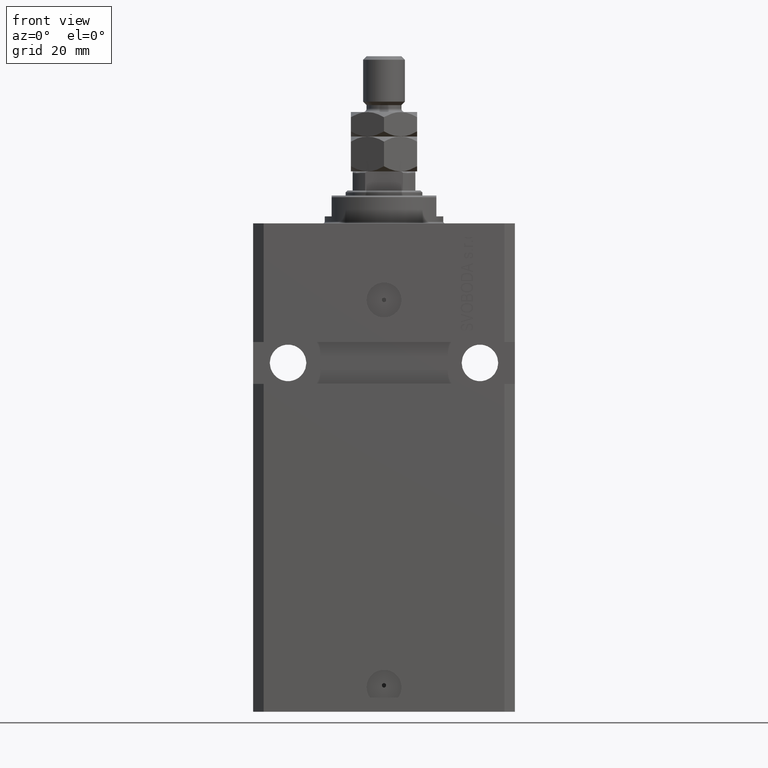
[diagram: clean part render]
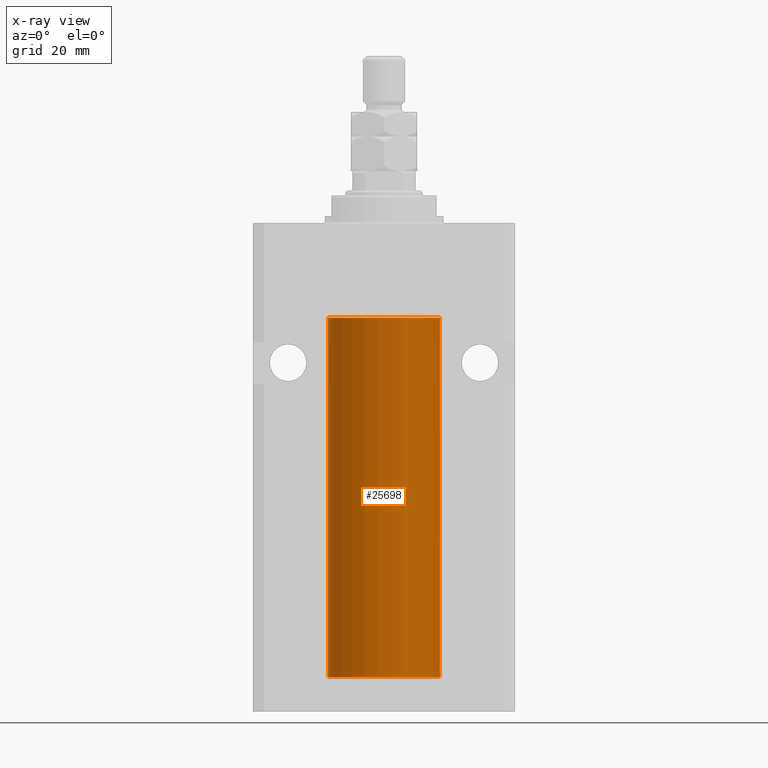
[diagram: x-ray — body ghosted, one internal face saturated and labeled with its STEP entity id]
A machine part, front view, then the same camera in x-ray: the body is ghosted and one INTERNAL B-rep face — a face not visible from any outside direction — is saturated and labeled: STEP entity #25698.
In plain terms, the highlighted cylindrical surface (partial cylindrical patch) has radius 16 mm, axis along (0, 0, 1).
Its self-contained STEP definition (entity closure, byte-faithful):
#739 = EDGE_LOOP ( 'NONE', ( #27831, #24135, #23318, #39933, #44777, #41147, #22969 ) ) ;
#1158 = AXIS2_PLACEMENT_3D ( 'NONE', #1783, #30860, #28059 ) ;
#1783 = CARTESIAN_POINT ( 'NONE',  ( 0.000000000000000000, 0.000000000000000000, -27.10000000000000142 ) ) ;
#2250 = VECTOR ( 'NONE', #29931, 1000.000000000000000 ) ;
#2405 = B_SPLINE_CURVE_WITH_KNOTS ( 'NONE', 3,
 ( #13081, #6831, #20907, #6608, #20684, #34968 ),
 .UNSPECIFIED., .F., .F.,
 ( 4, 2, 4 ),
 ( 0.001954221322144558768, 0.002442922366142232134, 0.002931623410139905066 ),
 .UNSPECIFIED. ) ;
#2660 = VERTEX_POINT ( 'NONE', #36783 ) ;
#3212 = CARTESIAN_POINT ( 'NONE',  ( -16.00000000000000000, 1.959434878635765131E-15, -27.10000000000000142 ) ) ;
#3316 = CARTESIAN_POINT ( 'NONE',  ( -16.00000000000000000, 1.959434878635765131E-15, -130.0999999999999943 ) ) ;
#6035 = DIRECTION ( 'NONE',  ( -0.000000000000000000, -0.000000000000000000, 1.000000000000000000 ) ) ;
#6608 = CARTESIAN_POINT ( 'NONE',  ( 15.99071289786271954, -0.5571474671814827806, -127.6731966548882440 ) ) ;
#6831 = CARTESIAN_POINT ( 'NONE',  ( 16.00000000000000355, -0.1632201307032006554, -127.3749999999998010 ) ) ;
#7580 = VERTEX_POINT ( 'NONE', #15304 ) ;
#9513 = FACE_OUTER_BOUND ( 'NONE', #739, .T. ) ;
#10217 = VECTOR ( 'NONE', #41046, 1000.000000000000000 ) ;
#10585 = CARTESIAN_POINT ( 'NONE',  ( 15.99070553365076996, -0.5573460204199366386, -128.3264689786301176 ) ) ;
#10692 = EDGE_CURVE ( 'NONE', #29125, #20674, #43165, .T. ) ;
#12348 = EDGE_CURVE ( 'NONE', #27001, #2660, #35050, .T. ) ;
#12803 = B_SPLINE_CURVE_WITH_KNOTS ( 'NONE', 3,
 ( #24411, #35026, #10585, #20739, #27861, #35478 ),
 .UNSPECIFIED., .F., .F.,
 ( 4, 2, 4 ),
 ( 0.002931623410139905066, 0.003419811200989341087, 0.003907998991838777109 ),
 .UNSPECIFIED. ) ;
#13081 = CARTESIAN_POINT ( 'NONE',  ( 16.00000000000013145, 3.665533114689029904E-13, -127.3749999999965752 ) ) ;
#15304 = CARTESIAN_POINT ( 'NONE',  ( 15.98778830858101685, -0.6250000000001232348, -128.0000000000000000 ) ) ;
#15443 = CARTESIAN_POINT ( 'NONE',  ( 16.00000000000000000, 0.000000000000000000, -130.0999999999999943 ) ) ;
#15981 = DIRECTION ( 'NONE',  ( 1.000000000000000000, 0.000000000000000000, 0.000000000000000000 ) ) ;
#16940 = DIRECTION ( 'NONE',  ( -0.000000000000000000, -0.000000000000000000, 1.000000000000000000 ) ) ;
#19223 = EDGE_CURVE ( 'NONE', #20674, #34253, #37788, .T. ) ;
#19982 = CARTESIAN_POINT ( 'NONE',  ( -16.00000000000000000, 1.959434878635765131E-15, -130.0999999999999943 ) ) ;
#20674 = VERTEX_POINT ( 'NONE', #28291 ) ;
#20684 = CARTESIAN_POINT ( 'NONE',  ( 15.98778830858102040, -0.6250000000001306732, -127.8350147931928689 ) ) ;
#20739 = CARTESIAN_POINT ( 'NONE',  ( 15.99707785788560521, -0.3267997233067349017, -128.5571521527664345 ) ) ;
#20860 = LINE ( 'NONE', #3316, #26941 ) ;
#20907 = CARTESIAN_POINT ( 'NONE',  ( 15.99708487730508821, -0.3264777333248704561, -127.4426616680992339 ) ) ;
#22969 = ORIENTED_EDGE ( 'NONE', *, *, #19223, .F. ) ;
#23241 = AXIS2_PLACEMENT_3D ( 'NONE', #43210, #25866, #29770 ) ;
#23318 = ORIENTED_EDGE ( 'NONE', *, *, #12348, .T. ) ;
#24135 = ORIENTED_EDGE ( 'NONE', *, *, #44860, .T. ) ;
#24411 = CARTESIAN_POINT ( 'NONE',  ( 15.98778830858101685, -0.6250000000001232348, -128.0000000000000000 ) ) ;
#25698 = ADVANCED_FACE ( 'NONE', ( #9513 ), #37638, .F. ) ;
#25866 = DIRECTION ( 'NONE',  ( 0.000000000000000000, 0.000000000000000000, 1.000000000000000000 ) ) ;
#26432 = VERTEX_POINT ( 'NONE', #34642 ) ;
#26494 = AXIS2_PLACEMENT_3D ( 'NONE', #33502, #6035, #15981 ) ;
#26941 = VECTOR ( 'NONE', #16940, 1000.000000000000000 ) ;
#27001 = VERTEX_POINT ( 'NONE', #3212 ) ;
#27793 = EDGE_CURVE ( 'NONE', #26432, #2660, #43381, .T. ) ;
#27831 = ORIENTED_EDGE ( 'NONE', *, *, #10692, .F. ) ;
#27861 = CARTESIAN_POINT ( 'NONE',  ( 16.00000000000000000, -0.1650734421240379612, -128.6250000000000568 ) ) ;
#28059 = DIRECTION ( 'NONE',  ( 1.000000000000000000, 0.000000000000000000, 0.000000000000000000 ) ) ;
#28291 = CARTESIAN_POINT ( 'NONE',  ( 16.00000000000000000, 0.000000000000000000, -130.0999999999999943 ) ) ;
#29125 = VERTEX_POINT ( 'NONE', #19982 ) ;
#29770 = DIRECTION ( 'NONE',  ( 1.000000000000000000, 0.000000000000000000, 0.000000000000000000 ) ) ;
#29931 = DIRECTION ( 'NONE',  ( -0.000000000000000000, -0.000000000000000000, 1.000000000000000000 ) ) ;
#30860 = DIRECTION ( 'NONE',  ( 0.000000000000000000, 0.000000000000000000, 1.000000000000000000 ) ) ;
#33502 = CARTESIAN_POINT ( 'NONE',  ( 0.000000000000000000, 0.000000000000000000, -130.0999999999999943 ) ) ;
#34253 = VERTEX_POINT ( 'NONE', #38564 ) ;
#34642 = CARTESIAN_POINT ( 'NONE',  ( 16.00000000000013145, 3.665533114689029904E-13, -127.3749999999965752 ) ) ;
#34968 = CARTESIAN_POINT ( 'NONE',  ( 15.98778830858101685, -0.6250000000001232348, -128.0000000000000000 ) ) ;
#35026 = CARTESIAN_POINT ( 'NONE',  ( 15.98778830858102040, -0.6250000000001159073, -128.1648119328233690 ) ) ;
#35050 = CIRCLE ( 'NONE', #1158, 16.00000000000000000 ) ;
#35478 = CARTESIAN_POINT ( 'NONE',  ( 16.00000000000000000, 2.199125140786256469E-15, -128.6250000000000284 ) ) ;
#36623 = EDGE_CURVE ( 'NONE', #7580, #34253, #12803, .T. ) ;
#36783 = CARTESIAN_POINT ( 'NONE',  ( 16.00000000000000000, 0.000000000000000000, -27.10000000000000142 ) ) ;
#37638 = CYLINDRICAL_SURFACE ( 'NONE', #26494, 16.00000000000000000 ) ;
#37788 = LINE ( 'NONE', #41722, #10217 ) ;
#38564 = CARTESIAN_POINT ( 'NONE',  ( 16.00000000000000000, 2.199125140786256469E-15, -128.6250000000000284 ) ) ;
#39933 = ORIENTED_EDGE ( 'NONE', *, *, #27793, .F. ) ;
#41046 = DIRECTION ( 'NONE',  ( -0.000000000000000000, -0.000000000000000000, 1.000000000000000000 ) ) ;
#41147 = ORIENTED_EDGE ( 'NONE', *, *, #36623, .T. ) ;
#41722 = CARTESIAN_POINT ( 'NONE',  ( 16.00000000000000000, 0.000000000000000000, -130.0999999999999943 ) ) ;
#42188 = EDGE_CURVE ( 'NONE', #26432, #7580, #2405, .T. ) ;
#43165 = CIRCLE ( 'NONE', #23241, 16.00000000000000000 ) ;
#43210 = CARTESIAN_POINT ( 'NONE',  ( 0.000000000000000000, 0.000000000000000000, -130.0999999999999943 ) ) ;
#43381 = LINE ( 'NONE', #15443, #2250 ) ;
#44777 = ORIENTED_EDGE ( 'NONE', *, *, #42188, .T. ) ;
#44860 = EDGE_CURVE ( 'NONE', #29125, #27001, #20860, .T. ) ;